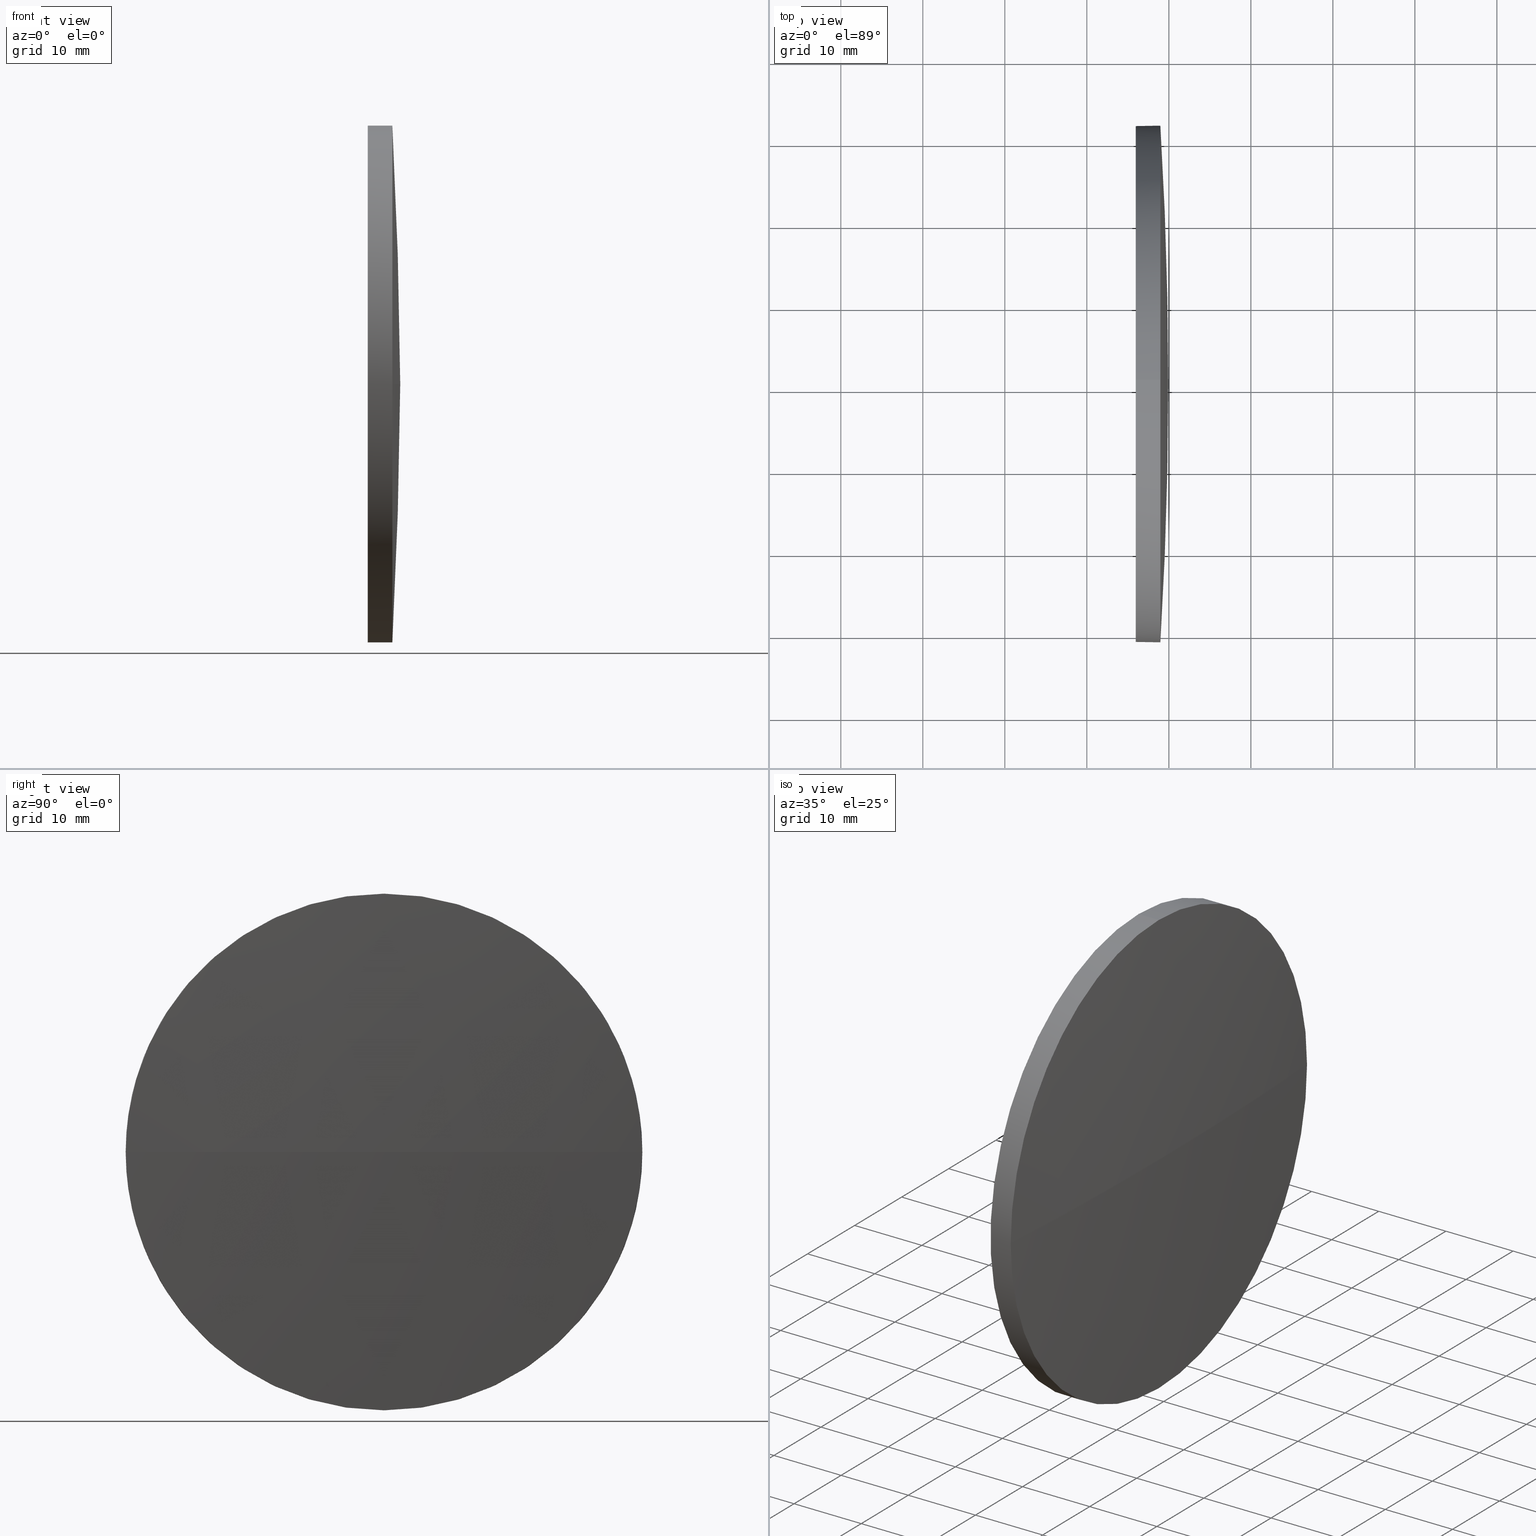
[diagram: canonical four-view strip — front | top / right | iso, engineering-drawing reading convention]
A machine part, canonical four-view strip (front | top / right | iso — engineering-drawing reading convention). The complete STEP part file that produces these views, byte-faithful:
ISO-10303-21;
HEADER;
FILE_DESCRIPTION (( 'STEP AP214' ),
    '1' );
FILE_NAME ('100163.STEP',
    '2019-05-17T02:38:52',
    ( '' ),
    ( '' ),
    'SwSTEP 2.0',
    'SolidWorks 2016',
    '' );
FILE_SCHEMA (( 'AUTOMOTIVE_DESIGN' ));
ENDSEC;

DATA;
#1 = VECTOR ( 'NONE', #144, 1000.000000000000000 ) ;
#2 = CARTESIAN_POINT ( 'NONE',  ( 225.9653141997173400, 130.4671098528244200, 0.0000000000000000000 ) ) ;
#3 = CIRCLE ( 'NONE', #151, 31.50000000000000000 ) ;
#4 =( GEOMETRIC_REPRESENTATION_CONTEXT ( 3 ) GLOBAL_UNCERTAINTY_ASSIGNED_CONTEXT ( ( #119 ) ) GLOBAL_UNIT_ASSIGNED_CONTEXT ( ( #174, #59, #34 ) ) REPRESENTATION_CONTEXT ( 'NONE', 'WORKASPACE' ) );
#5 = CARTESIAN_POINT ( 'NONE',  ( 228.9653141997174000, 161.9671098528241900, 0.0000000000000000000 ) ) ;
#6 = FACE_OUTER_BOUND ( 'NONE', #69, .T. ) ;
#7 = CARTESIAN_POINT ( 'NONE',  ( 228.9653141997173700, 130.4671098528244200, 0.0000000000000000000 ) ) ;
#8 = CARTESIAN_POINT ( 'NONE',  ( 225.9653141997173400, 130.4671098528244200, -31.50000000000000000 ) ) ;
#9 = COLOUR_RGB ( '',1.000000000000000000, 1.000000000000000000, 1.000000000000000000 ) ;
#10 = CARTESIAN_POINT ( 'NONE',  ( 228.9653141997174000, 98.96710985282464900, -3.857637417314135900E-015 ) ) ;
#11 = PRODUCT_DEFINITION_CONTEXT ( 'detailed design', #114, 'design' ) ;
#12 = DIRECTION ( 'NONE',  ( -0.0000000000000000000, 0.0000000000000000000, -1.000000000000000000 ) ) ;
#13 = CARTESIAN_POINT ( 'NONE',  ( 228.9653141997173700, 130.4671098528244200, -31.50000000000000000 ) ) ;
#14 = CIRCLE ( 'NONE', #163, 31.50000000000000000 ) ;
#15 = AXIS2_PLACEMENT_3D ( 'NONE', #180, #65, #80 ) ;
#16 = SURFACE_STYLE_USAGE ( .BOTH. , #184 ) ;
#17 = ORIENTED_EDGE ( 'NONE', *, *, #68, .T. ) ;
#18 =( NAMED_UNIT ( * ) SI_UNIT ( $, .STERADIAN. ) SOLID_ANGLE_UNIT ( ) );
#19 = CARTESIAN_POINT ( 'NONE',  ( 225.9653141997173400, 130.4671098528244200, 0.0000000000000000000 ) ) ;
#20 = SURFACE_SIDE_STYLE ('',( #121 ) ) ;
#21 = ORIENTED_EDGE ( 'NONE', *, *, #66, .T. ) ;
#22 = CARTESIAN_POINT ( 'NONE',  ( -287.3515608002779800, 130.4671098528244200, 0.0000000000000000000 ) ) ;
#23 = CARTESIAN_POINT ( 'NONE',  ( -287.3515608002779800, 130.4671098528244200, 0.0000000000000000000 ) ) ;
#24 = EDGE_CURVE ( 'NONE', #82, #166, #61, .T. ) ;
#25 = FILL_AREA_STYLE_COLOUR ( '', #143 ) ;
#26 = VERTEX_POINT ( 'NONE', #32 ) ;
#27 = AXIS2_PLACEMENT_3D ( 'NONE', #23, #117, #52 ) ;
#28 = CYLINDRICAL_SURFACE ( 'NONE', #57, 31.50000000000000000 ) ;
#29 = ORIENTED_EDGE ( 'NONE', *, *, #164, .F. ) ;
#30 = ORIENTED_EDGE ( 'NONE', *, *, #24, .T. ) ;
#31 = DIRECTION ( 'NONE',  ( 0.0000000000000000000, 0.0000000000000000000, 1.000000000000000000 ) ) ;
#32 = CARTESIAN_POINT ( 'NONE',  ( 228.9653141997173700, 130.4671098528244200, 31.50000000000000000 ) ) ;
#33 = CIRCLE ( 'NONE', #27, 517.2768749999953600 ) ;
#34 =( NAMED_UNIT ( * ) SI_UNIT ( $, .STERADIAN. ) SOLID_ANGLE_UNIT ( ) );
#35 = CARTESIAN_POINT ( 'NONE',  ( 229.9253141997173500, 130.4671098528244500, 0.0000000000000000000 ) ) ;
#36 = ORIENTED_EDGE ( 'NONE', *, *, #75, .F. ) ;
#37 =( GEOMETRIC_REPRESENTATION_CONTEXT ( 3 ) GLOBAL_UNCERTAINTY_ASSIGNED_CONTEXT ( ( #89 ) ) GLOBAL_UNIT_ASSIGNED_CONTEXT ( ( #111, #56, #18 ) ) REPRESENTATION_CONTEXT ( 'NONE', 'WORKASPACE' ) );
#38 = SPHERICAL_SURFACE ( 'NONE', #42, 517.2768749999953600 ) ;
#39 = CARTESIAN_POINT ( 'NONE',  ( -287.3515608002779800, 130.4671098528244200, 0.0000000000000000000 ) ) ;
#40 = EDGE_LOOP ( 'NONE', ( #54, #60, #157, #183, #67 ) ) ;
#41 = CIRCLE ( 'NONE', #112, 31.50000000000000000 ) ;
#42 = AXIS2_PLACEMENT_3D ( 'NONE', #39, #131, #118 ) ;
#43 = ADVANCED_FACE ( 'NONE', ( #77 ), #150, .T. ) ;
#44 = DIRECTION ( 'NONE',  ( 0.0000000000000000000, 0.0000000000000000000, 1.000000000000000000 ) ) ;
#45 = PRODUCT_RELATED_PRODUCT_CATEGORY ( 'part', '', ( #181 ) ) ;
#46 = CARTESIAN_POINT ( 'NONE',  ( 217.9945825323866300, 130.4671098528244200, 0.0000000000000000000 ) ) ;
#47 = DIRECTION ( 'NONE',  ( 0.0000000000000000000, 0.0000000000000000000, -1.000000000000000000 ) ) ;
#48 = SURFACE_STYLE_USAGE ( .BOTH. , #20 ) ;
#49 =( NAMED_UNIT ( * ) SI_UNIT ( $, .STERADIAN. ) SOLID_ANGLE_UNIT ( ) );
#50 = PRESENTATION_STYLE_ASSIGNMENT (( #48 ) ) ;
#51 = CARTESIAN_POINT ( 'NONE',  ( 217.9945825323866300, 130.4671098528244200, -31.50000000000000000 ) ) ;
#52 = DIRECTION ( 'NONE',  ( 1.000000000000000000, 0.0000000000000000000, 0.0000000000000000000 ) ) ;
#53 = FILL_AREA_STYLE ('',( #25 ) ) ;
#54 = ORIENTED_EDGE ( 'NONE', *, *, #55, .T. ) ;
#55 = EDGE_CURVE ( 'NONE', #107, #82, #41, .T. ) ;
#56 =( NAMED_UNIT ( * ) PLANE_ANGLE_UNIT ( ) SI_UNIT ( $, .RADIAN. ) );
#57 = AXIS2_PLACEMENT_3D ( 'NONE', #149, #147, #106 ) ;
#58 = PLANE ( 'NONE',  #167 ) ;
#59 =( NAMED_UNIT ( * ) PLANE_ANGLE_UNIT ( ) SI_UNIT ( $, .RADIAN. ) );
#60 = ORIENTED_EDGE ( 'NONE', *, *, #141, .T. ) ;
#61 = CIRCLE ( 'NONE', #137, 31.50000000000000000 ) ;
#62 =( GEOMETRIC_REPRESENTATION_CONTEXT ( 3 ) GLOBAL_UNCERTAINTY_ASSIGNED_CONTEXT ( ( #70 ) ) GLOBAL_UNIT_ASSIGNED_CONTEXT ( ( #63, #161, #49 ) ) REPRESENTATION_CONTEXT ( 'NONE', 'WORKASPACE' ) );
#63 =( LENGTH_UNIT ( ) NAMED_UNIT ( * ) SI_UNIT ( .MILLI., .METRE. ) );
#64 = FACE_OUTER_BOUND ( 'NONE', #102, .T. ) ;
#65 = DIRECTION ( 'NONE',  ( -1.000000000000000000, -0.0000000000000000000, -0.0000000000000000000 ) ) ;
#66 = EDGE_CURVE ( 'NONE', #142, #91, #108, .T. ) ;
#67 = ORIENTED_EDGE ( 'NONE', *, *, #75, .T. ) ;
#68 = EDGE_CURVE ( 'NONE', #91, #142, #3, .T. ) ;
#69 = EDGE_LOOP ( 'NONE', ( #29, #110, #36, #130 ) ) ;
#70 = UNCERTAINTY_MEASURE_WITH_UNIT (LENGTH_MEASURE( 1.000000000000000100E-005 ), #63, 'distance_accuracy_value', 'NONE');
#71 = DIRECTION ( 'NONE',  ( -1.000000000000000000, -0.0000000000000000000, -0.0000000000000000000 ) ) ;
#72 = SURFACE_STYLE_FILL_AREA ( #53 ) ;
#73 = FILL_AREA_STYLE_COLOUR ( '', #9 ) ;
#74 = PRODUCT_CONTEXT ( 'NONE', #156, 'mechanical' ) ;
#75 = EDGE_CURVE ( 'NONE', #26, #107, #14, .T. ) ;
#76 = STYLED_ITEM ( 'NONE', ( #115 ), #101 ) ;
#77 = FACE_OUTER_BOUND ( 'NONE', #40, .T. ) ;
#78 = PRESENTATION_LAYER_ASSIGNMENT (  '', '', ( #103 ) ) ;
#79 = DIRECTION ( 'NONE',  ( 0.0000000000000000000, 1.000000000000000000, 1.224646799147353200E-016 ) ) ;
#80 = DIRECTION ( 'NONE',  ( 0.0000000000000000000, 0.0000000000000000000, 1.000000000000000000 ) ) ;
#81 = PRODUCT_DEFINITION_FORMATION_WITH_SPECIFIED_SOURCE ( '�κ�', '', #181, .NOT_KNOWN. ) ;
#82 = VERTEX_POINT ( 'NONE', #13 ) ;
#83 = ADVANCED_FACE ( 'NONE', ( #186 ), #58, .F. ) ;
#84 = DIRECTION ( 'NONE',  ( -1.000000000000000000, -0.0000000000000000000, -0.0000000000000000000 ) ) ;
#85 = DIRECTION ( 'NONE',  ( 0.0000000000000000000, 0.0000000000000000000, 1.000000000000000000 ) ) ;
#86 = CARTESIAN_POINT ( 'NONE',  ( 225.9653141997173400, 130.4671098528244200, 0.0000000000000000000 ) ) ;
#87 = DIRECTION ( 'NONE',  ( 0.0000000000000000000, 0.0000000000000000000, 1.000000000000000000 ) ) ;
#88 = VERTEX_POINT ( 'NONE', #35 ) ;
#89 = UNCERTAINTY_MEASURE_WITH_UNIT (LENGTH_MEASURE( 1.000000000000000100E-005 ), #111, 'distance_accuracy_value', 'NONE');
#90 = CARTESIAN_POINT ( 'NONE',  ( 225.9653141997173400, 130.4671098528244200, 31.50000000000000000 ) ) ;
#91 = VERTEX_POINT ( 'NONE', #8 ) ;
#92 = DIRECTION ( 'NONE',  ( 0.0000000000000000000, 1.224646799147353200E-016, -1.000000000000000000 ) ) ;
#93 = ORIENTED_EDGE ( 'NONE', *, *, #55, .F. ) ;
#94 = AXIS2_PLACEMENT_3D ( 'NONE', #160, #92, #79 ) ;
#95 = ORIENTED_EDGE ( 'NONE', *, *, #182, .T. ) ;
#96 = CLOSED_SHELL ( 'NONE', ( #43, #123, #134, #152, #83 ) ) ;
#97 = MECHANICAL_DESIGN_GEOMETRIC_PRESENTATION_REPRESENTATION (  '', ( #103 ), #4 ) ;
#98 = DIRECTION ( 'NONE',  ( -1.000000000000000000, -0.0000000000000000000, -0.0000000000000000000 ) ) ;
#99 = CARTESIAN_POINT ( 'NONE',  ( 228.9653141997173700, 130.4671098528244200, 0.0000000000000000000 ) ) ;
#100 = FACE_OUTER_BOUND ( 'NONE', #175, .T. ) ;
#101 = MANIFOLD_SOLID_BREP ( '��ת1', #96 ) ;
#102 = EDGE_LOOP ( 'NONE', ( #165, #30, #176, #95, #133 ) ) ;
#103 = STYLED_ITEM ( 'NONE', ( #50 ), #154 ) ;
#104 = LINE ( 'NONE', #51, #1 ) ;
#105 = DIRECTION ( 'NONE',  ( 0.0000000000000000000, 1.000000000000000000, 0.0000000000000000000 ) ) ;
#106 = DIRECTION ( 'NONE',  ( 0.0000000000000000000, 0.0000000000000000000, 1.000000000000000000 ) ) ;
#107 = VERTEX_POINT ( 'NONE', #5 ) ;
#108 = CIRCLE ( 'NONE', #159, 31.50000000000000000 ) ;
#109 = VECTOR ( 'NONE', #162, 1000.000000000000000 ) ;
#110 = ORIENTED_EDGE ( 'NONE', *, *, #120, .T. ) ;
#111 =( LENGTH_UNIT ( ) NAMED_UNIT ( * ) SI_UNIT ( .MILLI., .METRE. ) );
#112 = AXIS2_PLACEMENT_3D ( 'NONE', #99, #98, #31 ) ;
#113 = DIRECTION ( 'NONE',  ( 1.000000000000000000, 0.0000000000000000000, 0.0000000000000000000 ) ) ;
#114 = APPLICATION_CONTEXT ( 'automotive_design' ) ;
#115 = PRESENTATION_STYLE_ASSIGNMENT (( #16 ) ) ;
#116 = ORIENTED_EDGE ( 'NONE', *, *, #120, .F. ) ;
#117 = DIRECTION ( 'NONE',  ( -0.0000000000000000000, 0.0000000000000000000, 1.000000000000000000 ) ) ;
#118 = DIRECTION ( 'NONE',  ( 0.0000000000000000000, 1.000000000000000000, 0.0000000000000000000 ) ) ;
#119 = UNCERTAINTY_MEASURE_WITH_UNIT (LENGTH_MEASURE( 1.000000000000000100E-005 ), #174, 'distance_accuracy_value', 'NONE');
#120 = EDGE_CURVE ( 'NONE', #88, #107, #33, .T. ) ;
#121 = SURFACE_STYLE_FILL_AREA ( #127 ) ;
#122 = AXIS2_PLACEMENT_3D ( 'NONE', #22, #12, #105 ) ;
#123 = ADVANCED_FACE ( 'NONE', ( #100 ), #38, .T. ) ;
#124 = PRODUCT_DEFINITION_SHAPE ( 'NONE', 'NONE',  #177 ) ;
#125 = AXIS2_PLACEMENT_3D ( 'NONE', #140, #158, #139 ) ;
#126 = CARTESIAN_POINT ( 'NONE',  ( 228.9653141997173700, 130.4671098528244200, 0.0000000000000000000 ) ) ;
#127 = FILL_AREA_STYLE ('',( #73 ) ) ;
#128 = DIRECTION ( 'NONE',  ( 0.0000000000000000000, 0.0000000000000000000, 1.000000000000000000 ) ) ;
#129 = APPLICATION_PROTOCOL_DEFINITION ( 'draft international standard', 'automotive_design', 1998, #156 ) ;
#130 = ORIENTED_EDGE ( 'NONE', *, *, #172, .F. ) ;
#131 = DIRECTION ( 'NONE',  ( -0.0000000000000000000, 0.0000000000000000000, -1.000000000000000000 ) ) ;
#132 = EDGE_LOOP ( 'NONE', ( #21, #17 ) ) ;
#133 = ORIENTED_EDGE ( 'NONE', *, *, #68, .F. ) ;
#134 = ADVANCED_FACE ( 'NONE', ( #6 ), #173, .T. ) ;
#135 = LINE ( 'NONE', #146, #109 ) ;
#136 = ORIENTED_EDGE ( 'NONE', *, *, #164, .T. ) ;
#137 = AXIS2_PLACEMENT_3D ( 'NONE', #126, #170, #128 ) ;
#138 = DIRECTION ( 'NONE',  ( -1.000000000000000000, -0.0000000000000000000, -0.0000000000000000000 ) ) ;
#139 = DIRECTION ( 'NONE',  ( 1.000000000000000000, 0.0000000000000000000, 0.0000000000000000000 ) ) ;
#140 = CARTESIAN_POINT ( 'NONE',  ( 0.0000000000000000000, 0.0000000000000000000, 0.0000000000000000000 ) ) ;
#141 = EDGE_CURVE ( 'NONE', #82, #91, #104, .T. ) ;
#142 = VERTEX_POINT ( 'NONE', #90 ) ;
#143 = COLOUR_RGB ( '',1.000000000000000000, 1.000000000000000000, 1.000000000000000000 ) ;
#144 = DIRECTION ( 'NONE',  ( -1.000000000000000000, -0.0000000000000000000, -0.0000000000000000000 ) ) ;
#145 = CIRCLE ( 'NONE', #94, 517.2768749999953600 ) ;
#146 = CARTESIAN_POINT ( 'NONE',  ( 217.9945825323866300, 130.4671098528244200, 31.50000000000000000 ) ) ;
#147 = DIRECTION ( 'NONE',  ( -1.000000000000000000, -0.0000000000000000000, -0.0000000000000000000 ) ) ;
#148 = ORIENTED_EDGE ( 'NONE', *, *, #24, .F. ) ;
#149 = CARTESIAN_POINT ( 'NONE',  ( 217.9945825323866300, 130.4671098528244200, 0.0000000000000000000 ) ) ;
#150 = CYLINDRICAL_SURFACE ( 'NONE', #169, 31.50000000000000000 ) ;
#151 = AXIS2_PLACEMENT_3D ( 'NONE', #2, #71, #44 ) ;
#152 = ADVANCED_FACE ( 'NONE', ( #64 ), #28, .T. ) ;
#153 = SHAPE_DEFINITION_REPRESENTATION ( #124, #154 ) ;
#154 = ADVANCED_BREP_SHAPE_REPRESENTATION ( '100163', ( #101, #125 ), #62 ) ;
#155 = DIRECTION ( 'NONE',  ( 0.0000000000000000000, 0.0000000000000000000, 1.000000000000000000 ) ) ;
#156 = APPLICATION_CONTEXT ( 'automotive_design' ) ;
#157 = ORIENTED_EDGE ( 'NONE', *, *, #66, .F. ) ;
#158 = DIRECTION ( 'NONE',  ( 0.0000000000000000000, 0.0000000000000000000, 1.000000000000000000 ) ) ;
#159 = AXIS2_PLACEMENT_3D ( 'NONE', #19, #84, #87 ) ;
#160 = CARTESIAN_POINT ( 'NONE',  ( -287.3515608002779800, 130.4671098528244200, 0.0000000000000000000 ) ) ;
#161 =( NAMED_UNIT ( * ) PLANE_ANGLE_UNIT ( ) SI_UNIT ( $, .RADIAN. ) );
#162 = DIRECTION ( 'NONE',  ( -1.000000000000000000, -0.0000000000000000000, -0.0000000000000000000 ) ) ;
#163 = AXIS2_PLACEMENT_3D ( 'NONE', #7, #168, #85 ) ;
#164 = EDGE_CURVE ( 'NONE', #88, #166, #145, .T. ) ;
#165 = ORIENTED_EDGE ( 'NONE', *, *, #141, .F. ) ;
#166 = VERTEX_POINT ( 'NONE', #10 ) ;
#167 = AXIS2_PLACEMENT_3D ( 'NONE', #86, #113, #47 ) ;
#168 = DIRECTION ( 'NONE',  ( -1.000000000000000000, -0.0000000000000000000, -0.0000000000000000000 ) ) ;
#169 = AXIS2_PLACEMENT_3D ( 'NONE', #46, #138, #155 ) ;
#170 = DIRECTION ( 'NONE',  ( -1.000000000000000000, -0.0000000000000000000, -0.0000000000000000000 ) ) ;
#171 = APPLICATION_PROTOCOL_DEFINITION ( 'draft international standard', 'automotive_design', 1998, #114 ) ;
#172 = EDGE_CURVE ( 'NONE', #166, #26, #178, .T. ) ;
#173 = SPHERICAL_SURFACE ( 'NONE', #122, 517.2768749999953600 ) ;
#174 =( LENGTH_UNIT ( ) NAMED_UNIT ( * ) SI_UNIT ( .MILLI., .METRE. ) );
#175 = EDGE_LOOP ( 'NONE', ( #116, #136, #148, #93 ) ) ;
#176 = ORIENTED_EDGE ( 'NONE', *, *, #172, .T. ) ;
#177 = PRODUCT_DEFINITION ( 'δ֪', '', #81, #11 ) ;
#178 = CIRCLE ( 'NONE', #15, 31.50000000000000000 ) ;
#179 = MECHANICAL_DESIGN_GEOMETRIC_PRESENTATION_REPRESENTATION (  '', ( #76 ), #37 ) ;
#180 = CARTESIAN_POINT ( 'NONE',  ( 228.9653141997173700, 130.4671098528244200, 0.0000000000000000000 ) ) ;
#181 = PRODUCT ( '100163', '100163', '', ( #74 ) ) ;
#182 = EDGE_CURVE ( 'NONE', #26, #142, #135, .T. ) ;
#183 = ORIENTED_EDGE ( 'NONE', *, *, #182, .F. ) ;
#184 = SURFACE_SIDE_STYLE ('',( #72 ) ) ;
#185 = PRESENTATION_LAYER_ASSIGNMENT (  '', '', ( #76 ) ) ;
#186 = FACE_OUTER_BOUND ( 'NONE', #132, .T. ) ;
ENDSEC;
END-ISO-10303-21;
